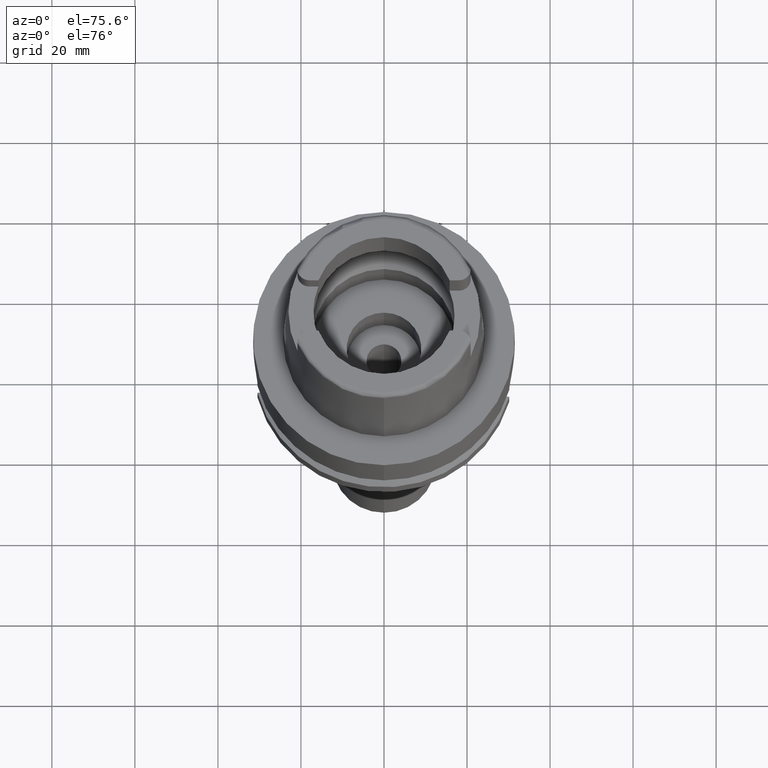
[diagram: clean part render]
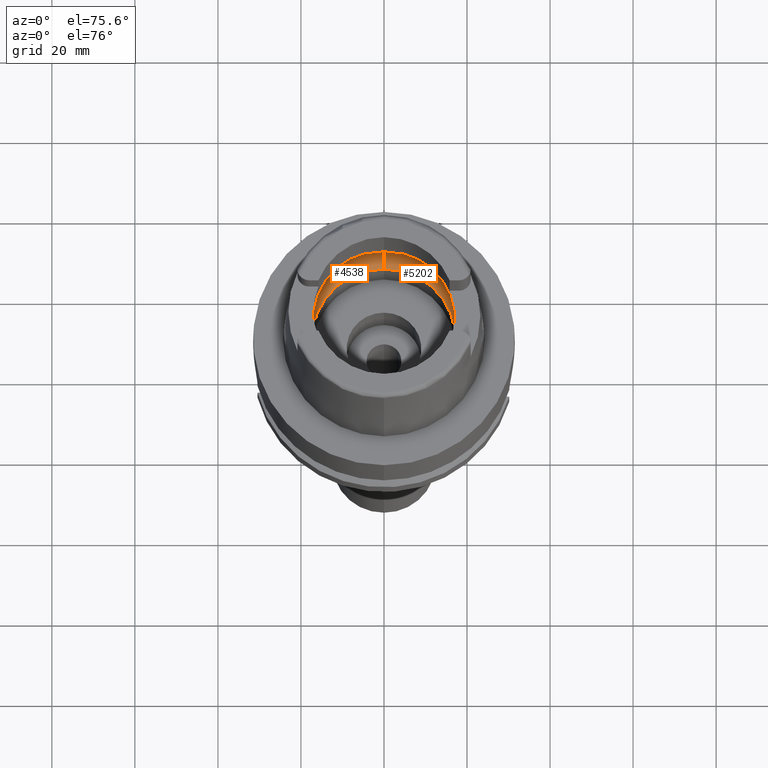
[diagram: same view with one multi-face feature highlighted, each face labeled with its STEP entity id]
A machine part, auxiliary view. The highlighted faces form ONE feature: a constant-radius fillet chain: 2 tangent blend faces with common blend radius 8 mm. The faces share edges in the B-rep.
Their STEP definitions:
[1] entity #5202 (Torus):
#2 = EDGE_CURVE ( 'NONE', #3980, #3176, #3530, .T. ) ;
#79 = CARTESIAN_POINT ( 'NONE',  ( 19.92646197918816142, -1.305240201015147816, 5.484478803106724421 ) ) ;
#118 = VERTEX_POINT ( 'NONE', #3660 ) ;
#156 = CARTESIAN_POINT ( 'NONE',  ( 19.92705251603473116, -1.287137774195264317, 5.477775297526362941 ) ) ;
#318 = VERTEX_POINT ( 'NONE', #4711 ) ;
#330 = CARTESIAN_POINT ( 'NONE',  ( 0.0000000000000000000, -12.00000000000000000, 6.186348233825000875 ) ) ;
#402 = AXIS2_PLACEMENT_3D ( 'NONE', #3941, #2274, #3967 ) ;
#441 = DIRECTION ( 'NONE',  ( 0.0000000000000000000, 1.000000000000000000, 0.0000000000000000000 ) ) ;
#709 = CARTESIAN_POINT ( 'NONE',  ( 19.84575864665999845, 2.479085262491000030, 6.186348233825000875 ) ) ;
#761 = CARTESIAN_POINT ( 'NONE',  ( 19.92466859728581952, 1.358323626958147345, 5.504643456233413445 ) ) ;
#788 = CARTESIAN_POINT ( 'NONE',  ( 19.91819203562567253, 1.528958543118313473, 5.574902925593662850 ) ) ;
#897 = EDGE_CURVE ( 'NONE', #318, #1399, #3676, .T. ) ;
#926 = CIRCLE ( 'NONE', #3193, 7.999999999999992895 ) ;
#1000 = AXIS2_PLACEMENT_3D ( 'NONE', #3290, #2541, #4243 ) ;
#1022 = CARTESIAN_POINT ( 'NONE',  ( 19.93856404763053192, -0.8186976556962145546, 5.338708415004473906 ) ) ;
#1235 = CARTESIAN_POINT ( 'NONE',  ( 19.94501428475999916, 0.0000000000000000000, 5.250000000000000000 ) ) ;
#1280 = AXIS2_PLACEMENT_3D ( 'NONE', #5461, #2485, #441 ) ;
#1345 = CARTESIAN_POINT ( 'NONE',  ( 19.93095478351687788, -1.158129430943390714, 5.432640251379949881 ) ) ;
#1399 = VERTEX_POINT ( 'NONE', #4826 ) ;
#1504 = DIRECTION ( 'NONE',  ( -1.000000000000000000, 0.0000000000000000000, 0.0000000000000000000 ) ) ;
#1545 = DIRECTION ( 'NONE',  ( 0.0000000000000000000, 0.6562500000000006661, -0.7545435292281016393 ) ) ;
#1550 = CIRCLE ( 'NONE', #3481, 17.25000000000000000 ) ;
#1603 = CARTESIAN_POINT ( 'NONE',  ( 19.93856420101220195, 0.9461154250117944642, 5.348253029309250728 ) ) ;
#1785 = CARTESIAN_POINT ( 'NONE',  ( 19.94340172547763146, -0.4850964740021458943, 5.274618261423835719 ) ) ;
#1867 = CARTESIAN_POINT ( 'NONE',  ( 19.88331726735227534, -2.178418184679673075, 5.921432962333633476 ) ) ;
#1923 = DIRECTION ( 'NONE',  ( 0.0000000000000000000, -0.6562500000000006661, -0.7545435292281016393 ) ) ;
#1930 = CARTESIAN_POINT ( 'NONE',  ( 19.91447780742437246, 1.610663291711310841, 5.612998104004511823 ) ) ;
#1957 = CARTESIAN_POINT ( 'NONE',  ( 19.92207735139349367, 1.430229258461773956, 5.533213523230517517 ) ) ;
#2014 = CARTESIAN_POINT ( 'NONE',  ( 0.0000000000000000000, 12.00000000000000000, 6.186348233825000875 ) ) ;
#2270 = CARTESIAN_POINT ( 'NONE',  ( 19.84575864665999845, -2.479085262491000030, 6.186348233825000875 ) ) ;
#2274 = DIRECTION ( 'NONE',  ( 0.0000000000000000000, 0.0000000000000000000, 1.000000000000000000 ) ) ;
#2285 = EDGE_CURVE ( 'NONE', #2365, #118, #926, .T. ) ;
#2286 = ORIENTED_EDGE ( 'NONE', *, *, #4404, .F. ) ;
#2352 = EDGE_CURVE ( 'NONE', #2735, #3980, #3492, .T. ) ;
#2365 = VERTEX_POINT ( 'NONE', #5388 ) ;
#2440 = CARTESIAN_POINT ( 'NONE',  ( 19.92517031495895097, 1.343818775761117967, 5.499041339644736404 ) ) ;
#2485 = DIRECTION ( 'NONE',  ( 0.0000000000000000000, 0.0000000000000000000, -1.000000000000000000 ) ) ;
#2541 = DIRECTION ( 'NONE',  ( 0.0000000000000000000, 0.0000000000000000000, -1.000000000000000000 ) ) ;
#2605 = ORIENTED_EDGE ( 'NONE', *, *, #2, .F. ) ;
#2676 = CIRCLE ( 'NONE', #1280, 20.00000000000000000 ) ;
#2692 = FACE_OUTER_BOUND ( 'NONE', #3442, .T. ) ;
#2735 = VERTEX_POINT ( 'NONE', #4721 ) ;
#2780 = DIRECTION ( 'NONE',  ( 1.000000000000000000, 0.0000000000000000000, 0.0000000000000000000 ) ) ;
#2999 = EDGE_CURVE ( 'NONE', #3176, #1399, #3357, .T. ) ;
#3023 = CARTESIAN_POINT ( 'NONE',  ( 19.90995224292280952, -1.795938310847498887, 5.670407811397682352 ) ) ;
#3050 = CARTESIAN_POINT ( 'NONE',  ( 19.92839736527999150, -1.244570816102678723, 5.462385030248693596 ) ) ;
#3176 = VERTEX_POINT ( 'NONE', #4827 ) ;
#3193 = AXIS2_PLACEMENT_3D ( 'NONE', #2014, #2780, #1545 ) ;
#3225 = DIRECTION ( 'NONE',  ( 0.0000000000000000000, 0.0000000000000000000, 1.000000000000000000 ) ) ;
#3251 = ORIENTED_EDGE ( 'NONE', *, *, #2352, .F. ) ;
#3252 = DIRECTION ( 'NONE',  ( 0.0000000000000000000, -1.000000000000000000, 0.0000000000000000000 ) ) ;
#3272 = CARTESIAN_POINT ( 'NONE',  ( 19.94501428475999560, 0.4961178817713813860, 5.250000000000000888 ) ) ;
#3290 = CARTESIAN_POINT ( 'NONE',  ( 0.0000000000000000000, 0.0000000000000000000, 6.186348233825000875 ) ) ;
#3357 = CIRCLE ( 'NONE', #1000, 20.00000000000001421 ) ;
#3442 = EDGE_LOOP ( 'NONE', ( #3251, #5139, #3522, #2286, #4064, #4269, #2605 ) ) ;
#3461 = CARTESIAN_POINT ( 'NONE',  ( 19.93292009014226096, -1.081811776603611053, 5.409026499425223733 ) ) ;
#3481 = AXIS2_PLACEMENT_3D ( 'NONE', #5418, #3225, #3252 ) ;
#3492 = B_SPLINE_CURVE_WITH_KNOTS ( 'NONE', 3,
 ( #709, #4061, #3672, #4565, #4978, #1930, #788, #1957, #3643, #761, #2440, #4034, #1603, #3272, #5365 ),
 .UNSPECIFIED., .F., .F.,
 ( 4, 2, 2, 1, 1, 1, 2, 2, 4 ),
 ( 0.0000000000000000000, 0.2499999999999978906, 0.3749999999999969469, 0.4374999999999963363, 0.4687499999999959477, 0.4843749999999960587, 0.4921874999999960032, 0.4999999999999960032, 1.000000000000000000 ),
 .UNSPECIFIED. ) ;
#3522 = ORIENTED_EDGE ( 'NONE', *, *, #2285, .F. ) ;
#3530 = B_SPLINE_CURVE_WITH_KNOTS ( 'NONE', 3,
 ( #3859, #5132, #1785, #1022, #4751, #3461, #1345, #3050, #156, #79, #4719, #5189, #3023, #1867, #2270 ),
 .UNSPECIFIED., .F., .F.,
 ( 4, 2, 2, 1, 1, 1, 2, 2, 4 ),
 ( 0.0000000000000000000, 0.2499999999999993339, 0.3749999999999990008, 0.4374999999999986677, 0.4687499999999983902, 0.4843749999999981126, 0.4921874999999981681, 0.4999999999999982792, 1.000000000000000000 ),
 .UNSPECIFIED. ) ;
#3562 = TOROIDAL_SURFACE ( 'NONE', #402, 12.00000000000000000, 8.000000000000000000 ) ;
#3643 = CARTESIAN_POINT ( 'NONE',  ( 19.92390802166061903, 1.380021155214873119, 5.513101308918829879 ) ) ;
#3660 = CARTESIAN_POINT ( 'NONE',  ( 0.0000000000000000000, 20.00000000000000000, 6.186348233825000875 ) ) ;
#3672 = CARTESIAN_POINT ( 'NONE',  ( 19.88058486986654572, 2.158464112384509193, 5.925242031513535679 ) ) ;
#3676 = CIRCLE ( 'NONE', #4920, 7.999999999999992895 ) ;
#3859 = CARTESIAN_POINT ( 'NONE',  ( 19.94501428475999916, 0.0000000000000000000, 5.250000000000000000 ) ) ;
#3941 = CARTESIAN_POINT ( 'NONE',  ( 0.0000000000000000000, 0.0000000000000000000, 6.186348233825000875 ) ) ;
#3967 = DIRECTION ( 'NONE',  ( 0.0000000000000000000, 1.000000000000000000, 0.0000000000000000000 ) ) ;
#3980 = VERTEX_POINT ( 'NONE', #1235 ) ;
#4034 = CARTESIAN_POINT ( 'NONE',  ( 19.92546246839948410, 1.335240779489388130, 5.495763556830105756 ) ) ;
#4061 = CARTESIAN_POINT ( 'NONE',  ( 19.86453694063900954, 2.328759859908619223, 6.053897766926341184 ) ) ;
#4064 = ORIENTED_EDGE ( 'NONE', *, *, #897, .T. ) ;
#4243 = DIRECTION ( 'NONE',  ( 0.9922879323327794543, -0.1239542631244973381, 0.0000000000000000000 ) ) ;
#4269 = ORIENTED_EDGE ( 'NONE', *, *, #2999, .F. ) ;
#4404 = EDGE_CURVE ( 'NONE', #318, #2365, #1550, .T. ) ;
#4565 = CARTESIAN_POINT ( 'NONE',  ( 19.90056121658070509, 1.871176557661653028, 5.748254428408765548 ) ) ;
#4711 = CARTESIAN_POINT ( 'NONE',  ( 0.0000000000000000000, -17.25000000000000000, 0.1500000000000999700 ) ) ;
#4719 = CARTESIAN_POINT ( 'NONE',  ( 19.92606513842726201, -1.317277204138071589, 5.488971370721936083 ) ) ;
#4721 = CARTESIAN_POINT ( 'NONE',  ( 19.84575864665999845, 2.479085262491000030, 6.186348233825000875 ) ) ;
#4751 = CARTESIAN_POINT ( 'NONE',  ( 19.93654834852758029, -0.9262717684427494991, 5.364597653862777982 ) ) ;
#4826 = CARTESIAN_POINT ( 'NONE',  ( 0.0000000000000000000, -20.00000000000000000, 6.186348233825000875 ) ) ;
#4827 = CARTESIAN_POINT ( 'NONE',  ( 19.84575864665999845, -2.479085262491000030, 6.186348233825000875 ) ) ;
#4920 = AXIS2_PLACEMENT_3D ( 'NONE', #330, #1504, #1923 ) ;
#4978 = CARTESIAN_POINT ( 'NONE',  ( 19.90653740763088919, 1.770130309642983013, 5.691947549107391424 ) ) ;
#5132 = CARTESIAN_POINT ( 'NONE',  ( 19.94501428475999560, -0.2480409225904678383, 5.250000000000000000 ) ) ;
#5139 = ORIENTED_EDGE ( 'NONE', *, *, #5278, .F. ) ;
#5189 = CARTESIAN_POINT ( 'NONE',  ( 19.92590906290985586, -1.321975527286266106, 5.490734903793783594 ) ) ;
#5202 = ADVANCED_FACE ( 'NONE', ( #2692 ), #3562, .F. ) ;
#5278 = EDGE_CURVE ( 'NONE', #118, #2735, #2676, .T. ) ;
#5365 = CARTESIAN_POINT ( 'NONE',  ( 19.94501428475999916, 0.0000000000000000000, 5.250000000000000000 ) ) ;
#5388 = CARTESIAN_POINT ( 'NONE',  ( 0.0000000000000000000, 17.25000000000000000, 0.1500000000000999700 ) ) ;
#5418 = CARTESIAN_POINT ( 'NONE',  ( 0.0000000000000000000, 0.0000000000000000000, 0.1500000000000999700 ) ) ;
#5461 = CARTESIAN_POINT ( 'NONE',  ( 0.0000000000000000000, 0.0000000000000000000, 6.186348233825000875 ) ) ;
[2] entity #4538 (Torus):
#28 = FACE_OUTER_BOUND ( 'NONE', #3532, .T. ) ;
#65 = CARTESIAN_POINT ( 'NONE',  ( -19.94501428475999916, 0.0000000000000000000, 5.250000000000000000 ) ) ;
#118 = VERTEX_POINT ( 'NONE', #3660 ) ;
#298 = CARTESIAN_POINT ( 'NONE',  ( -19.90653714044385936, -1.770134880955051226, 5.691950022312413537 ) ) ;
#318 = VERTEX_POINT ( 'NONE', #4711 ) ;
#330 = CARTESIAN_POINT ( 'NONE',  ( 0.0000000000000000000, -12.00000000000000000, 6.186348233825000875 ) ) ;
#492 = CARTESIAN_POINT ( 'NONE',  ( -19.92839760417749062, 1.244563448290384899, 5.462382440187010246 ) ) ;
#584 = DIRECTION ( 'NONE',  ( 0.0000000000000000000, 0.0000000000000000000, -1.000000000000000000 ) ) ;
#871 = ORIENTED_EDGE ( 'NONE', *, *, #3653, .F. ) ;
#873 = DIRECTION ( 'NONE',  ( 0.0000000000000000000, 1.000000000000000000, 0.0000000000000000000 ) ) ;
#881 = CARTESIAN_POINT ( 'NONE',  ( -19.92466831866535770, -1.358331184285348270, 5.504646393194166265 ) ) ;
#897 = EDGE_CURVE ( 'NONE', #318, #1399, #3676, .T. ) ;
#926 = CIRCLE ( 'NONE', #3193, 7.999999999999992895 ) ;
#974 = CARTESIAN_POINT ( 'NONE',  ( 0.0000000000000000000, 0.0000000000000000000, 6.186348233825000875 ) ) ;
#987 = CARTESIAN_POINT ( 'NONE',  ( -19.88331748051938064, 2.178416478297318104, 5.921431458854276464 ) ) ;
#997 = EDGE_CURVE ( 'NONE', #5203, #1192, #2593, .T. ) ;
#1192 = VERTEX_POINT ( 'NONE', #2568 ) ;
#1292 = CARTESIAN_POINT ( 'NONE',  ( -19.92546218847456529, -1.335248582686434426, 5.495766530070138600 ) ) ;
#1334 = CARTESIAN_POINT ( 'NONE',  ( -19.93654847024033927, 0.9262661514275534191, 5.364596242157149142 ) ) ;
#1399 = VERTEX_POINT ( 'NONE', #4826 ) ;
#1474 = CARTESIAN_POINT ( 'NONE',  ( -19.84575864665999845, 2.479085262489999941, 6.186348233825000875 ) ) ;
#1504 = DIRECTION ( 'NONE',  ( -1.000000000000000000, 0.0000000000000000000, 0.0000000000000000000 ) ) ;
#1536 = CARTESIAN_POINT ( 'NONE',  ( -19.86453683446996266, -2.328760709817148111, 6.053898515773700417 ) ) ;
#1545 = DIRECTION ( 'NONE',  ( 0.0000000000000000000, 0.6562500000000006661, -0.7545435292281016393 ) ) ;
#1572 = ORIENTED_EDGE ( 'NONE', *, *, #897, .F. ) ;
#1573 = ORIENTED_EDGE ( 'NONE', *, *, #3501, .F. ) ;
#1680 = DIRECTION ( 'NONE',  ( 0.0000000000000000000, 1.000000000000000000, 0.0000000000000000000 ) ) ;
#1749 = CARTESIAN_POINT ( 'NONE',  ( -19.94501428476000271, 0.2480393703315448006, 5.249999999999999112 ) ) ;
#1923 = DIRECTION ( 'NONE',  ( 0.0000000000000000000, -0.6562500000000006661, -0.7545435292281016393 ) ) ;
#2010 = VERTEX_POINT ( 'NONE', #1474 ) ;
#2014 = CARTESIAN_POINT ( 'NONE',  ( 0.0000000000000000000, 12.00000000000000000, 6.186348233825000875 ) ) ;
#2030 = CARTESIAN_POINT ( 'NONE',  ( -19.84575864665999845, -2.479085262491000030, 6.186348233825000875 ) ) ;
#2069 = CARTESIAN_POINT ( 'NONE',  ( -19.84575864665999845, 2.479085262489999941, 6.186348233825000875 ) ) ;
#2166 = CARTESIAN_POINT ( 'NONE',  ( -19.93856410866583317, -0.9461212226835923333, 5.348254255821970560 ) ) ;
#2236 = CARTESIAN_POINT ( 'NONE',  ( -19.92590934067762731, 1.321967662511047470, 5.490731940949380885 ) ) ;
#2240 = CIRCLE ( 'NONE', #4465, 20.00000000000001421 ) ;
#2285 = EDGE_CURVE ( 'NONE', #2365, #118, #926, .T. ) ;
#2365 = VERTEX_POINT ( 'NONE', #5388 ) ;
#2377 = CARTESIAN_POINT ( 'NONE',  ( -19.90056096498078375, -1.871180422678105693, 5.748256676446665381 ) ) ;
#2493 = CARTESIAN_POINT ( 'NONE',  ( 0.0000000000000000000, 0.0000000000000000000, 0.1500000000000999700 ) ) ;
#2528 = EDGE_CURVE ( 'NONE', #2365, #318, #3380, .T. ) ;
#2559 = CARTESIAN_POINT ( 'NONE',  ( -19.93856414036406477, 0.8186926599981305674, 5.338707319452686839 ) ) ;
#2566 = CARTESIAN_POINT ( 'NONE',  ( -19.90995254882344412, 1.795933974831515068, 5.670404978818013753 ) ) ;
#2568 = CARTESIAN_POINT ( 'NONE',  ( -19.94501428475999916, 0.0000000000000000000, 5.250000000000000000 ) ) ;
#2593 = B_SPLINE_CURVE_WITH_KNOTS ( 'NONE', 3,
 ( #2030, #1536, #3210, #2377, #298, #4277, #5048, #4997, #2958, #881, #3824, #1292, #2166, #5402, #4218 ),
 .UNSPECIFIED., .F., .F.,
 ( 4, 2, 2, 1, 1, 1, 2, 2, 4 ),
 ( 0.0000000000000000000, 0.2500000000000016653, 0.3750000000000023870, 0.4375000000000028866, 0.4687500000000030531, 0.4843750000000031641, 0.4921875000000032196, 0.5000000000000032196, 1.000000000000000000 ),
 .UNSPECIFIED. ) ;
#2600 = CARTESIAN_POINT ( 'NONE',  ( -19.92646224591025472, 1.305232515153943673, 5.484475949585862153 ) ) ;
#2637 = DIRECTION ( 'NONE',  ( 0.0000000000000000000, -1.000000000000000000, 0.0000000000000000000 ) ) ;
#2661 = EDGE_CURVE ( 'NONE', #1399, #5203, #3975, .T. ) ;
#2780 = DIRECTION ( 'NONE',  ( 1.000000000000000000, 0.0000000000000000000, 0.0000000000000000000 ) ) ;
#2897 = CARTESIAN_POINT ( 'NONE',  ( 0.0000000000000000000, 0.0000000000000000000, 6.186348233825000875 ) ) ;
#2958 = CARTESIAN_POINT ( 'NONE',  ( -19.92390774200794112, -1.380028552273980136, 5.513104237275524788 ) ) ;
#3033 = CARTESIAN_POINT ( 'NONE',  ( 0.0000000000000000000, 0.0000000000000000000, 6.186348233825000875 ) ) ;
#3190 = ORIENTED_EDGE ( 'NONE', *, *, #2528, .F. ) ;
#3193 = AXIS2_PLACEMENT_3D ( 'NONE', #2014, #2780, #1545 ) ;
#3210 = CARTESIAN_POINT ( 'NONE',  ( -19.88058468752640806, -2.158466029911068951, 5.925243478961304433 ) ) ;
#3380 = CIRCLE ( 'NONE', #4788, 17.25000000000000000 ) ;
#3501 = EDGE_CURVE ( 'NONE', #2010, #118, #2240, .T. ) ;
#3532 = EDGE_LOOP ( 'NONE', ( #3573, #1572, #3190, #4324, #1573, #871, #4860 ) ) ;
#3573 = ORIENTED_EDGE ( 'NONE', *, *, #2661, .F. ) ;
#3653 = EDGE_CURVE ( 'NONE', #1192, #2010, #4494, .T. ) ;
#3660 = CARTESIAN_POINT ( 'NONE',  ( 0.0000000000000000000, 20.00000000000000000, 6.186348233825000875 ) ) ;
#3676 = CIRCLE ( 'NONE', #4920, 7.999999999999992895 ) ;
#3782 = DIRECTION ( 'NONE',  ( 0.0000000000000000000, 0.0000000000000000000, 1.000000000000000000 ) ) ;
#3824 = CARTESIAN_POINT ( 'NONE',  ( -19.92517003708521273, -1.343826440312797077, 5.499044281752649255 ) ) ;
#3975 = CIRCLE ( 'NONE', #4245, 20.00000000000000000 ) ;
#4170 = CARTESIAN_POINT ( 'NONE',  ( -19.93095498564698076, 1.158122524600810666, 5.432638017440244660 ) ) ;
#4218 = CARTESIAN_POINT ( 'NONE',  ( -19.94501428475999916, 0.0000000000000000000, 5.250000000000000000 ) ) ;
#4245 = AXIS2_PLACEMENT_3D ( 'NONE', #974, #584, #2637 ) ;
#4277 = CARTESIAN_POINT ( 'NONE',  ( -19.91447752810589833, -1.610669004317299313, 5.613000827215236299 ) ) ;
#4324 = ORIENTED_EDGE ( 'NONE', *, *, #2285, .T. ) ;
#4465 = AXIS2_PLACEMENT_3D ( 'NONE', #2897, #4658, #5070 ) ;
#4468 = TOROIDAL_SURFACE ( 'NONE', #5348, 12.00000000000000000, 8.000000000000000000 ) ;
#4494 = B_SPLINE_CURVE_WITH_KNOTS ( 'NONE', 3,
 ( #65, #1749, #5121, #2559, #1334, #4682, #4170, #492, #4685, #2600, #5183, #2236, #2566, #987, #2069 ),
 .UNSPECIFIED., .F., .F.,
 ( 4, 2, 2, 1, 1, 1, 2, 2, 4 ),
 ( 0.0000000000000000000, 0.2500000000000037748, 0.3750000000000058287, 0.4375000000000067168, 0.4687500000000069944, 0.4843750000000072720, 0.4921875000000072720, 0.5000000000000072164, 1.000000000000000000 ),
 .UNSPECIFIED. ) ;
#4538 = ADVANCED_FACE ( 'NONE', ( #28 ), #4468, .F. ) ;
#4658 = DIRECTION ( 'NONE',  ( 0.0000000000000000000, 0.0000000000000000000, -1.000000000000000000 ) ) ;
#4682 = CARTESIAN_POINT ( 'NONE',  ( -19.93292026401761419, 1.081805289724191210, 5.409024550128566311 ) ) ;
#4685 = CARTESIAN_POINT ( 'NONE',  ( -19.92705277426681576, 1.287130182688421165, 5.477772523843790431 ) ) ;
#4711 = CARTESIAN_POINT ( 'NONE',  ( 0.0000000000000000000, -17.25000000000000000, 0.1500000000000999700 ) ) ;
#4728 = DIRECTION ( 'NONE',  ( 0.0000000000000000000, 0.0000000000000000000, 1.000000000000000000 ) ) ;
#4788 = AXIS2_PLACEMENT_3D ( 'NONE', #2493, #3782, #1680 ) ;
#4826 = CARTESIAN_POINT ( 'NONE',  ( 0.0000000000000000000, -20.00000000000000000, 6.186348233825000875 ) ) ;
#4860 = ORIENTED_EDGE ( 'NONE', *, *, #997, .F. ) ;
#4920 = AXIS2_PLACEMENT_3D ( 'NONE', #330, #1504, #1923 ) ;
#4997 = CARTESIAN_POINT ( 'NONE',  ( -19.92207706994746985, -1.430236285583133204, 5.533216425421237261 ) ) ;
#5048 = CARTESIAN_POINT ( 'NONE',  ( -19.91819175305377243, -1.528964846757111973, 5.574905751837347267 ) ) ;
#5070 = DIRECTION ( 'NONE',  ( -0.9922879323327794543, 0.1239542631244973381, 0.0000000000000000000 ) ) ;
#5121 = CARTESIAN_POINT ( 'NONE',  ( -19.94340174866101734, 0.4850934535354030630, 5.274617952747172822 ) ) ;
#5183 = CARTESIAN_POINT ( 'NONE',  ( -19.92606541085463689, 1.317269455711140846, 5.488968463726680014 ) ) ;
#5203 = VERTEX_POINT ( 'NONE', #5217 ) ;
#5217 = CARTESIAN_POINT ( 'NONE',  ( -19.84575864665999845, -2.479085262491000030, 6.186348233825000875 ) ) ;
#5348 = AXIS2_PLACEMENT_3D ( 'NONE', #3033, #4728, #873 ) ;
#5388 = CARTESIAN_POINT ( 'NONE',  ( 0.0000000000000000000, 17.25000000000000000, 0.1500000000000999700 ) ) ;
#5402 = CARTESIAN_POINT ( 'NONE',  ( -19.94501428475999560, -0.4961209670605932209, 5.249999999999998224 ) ) ;